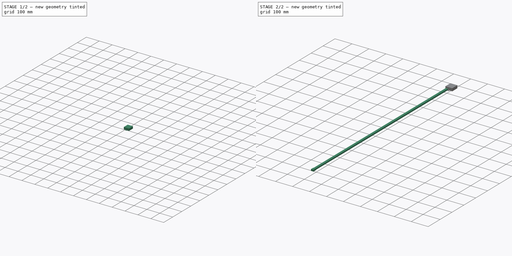
[diagram: build sequence overview — one tinted view per stage of 2, left to right]
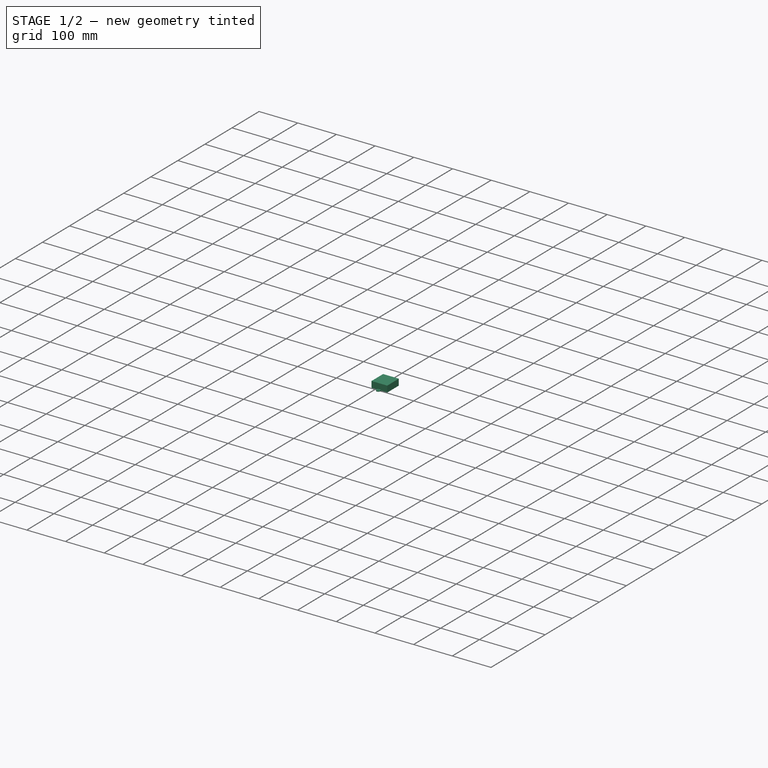
[diagram: stage 1 of 2 — iso view after this stage's code; geometry added in this stage tinted green]
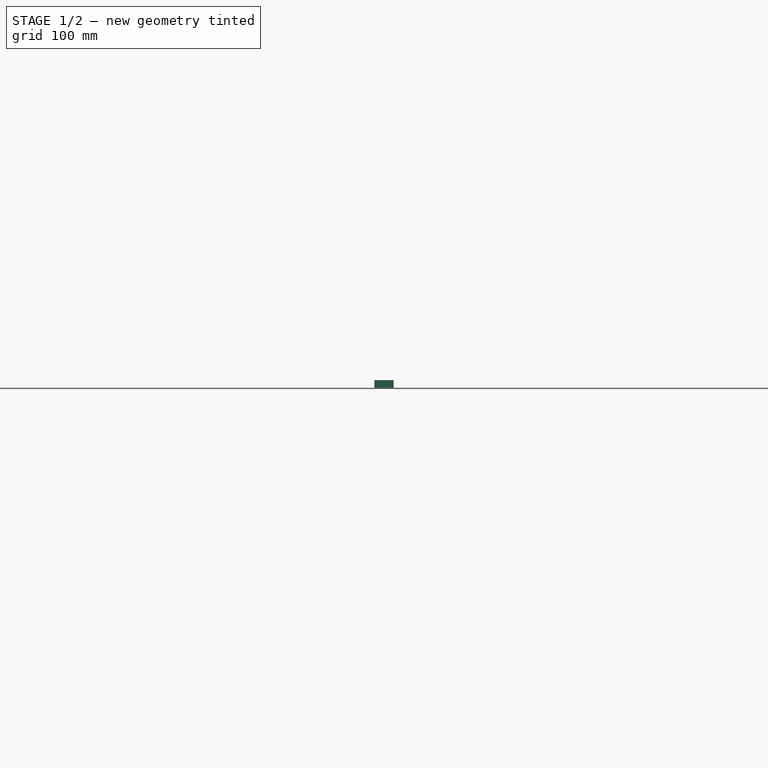
[diagram: stage 1 of 2 — front view after this stage's code; geometry added in this stage tinted green]
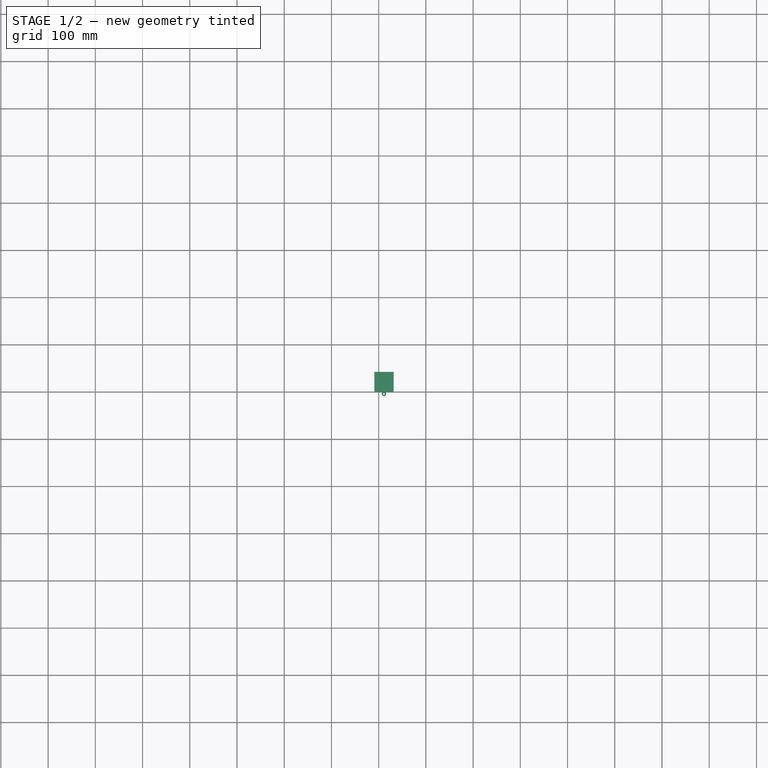
[diagram: stage 1 of 2 — top view after this stage's code; geometry added in this stage tinted green]
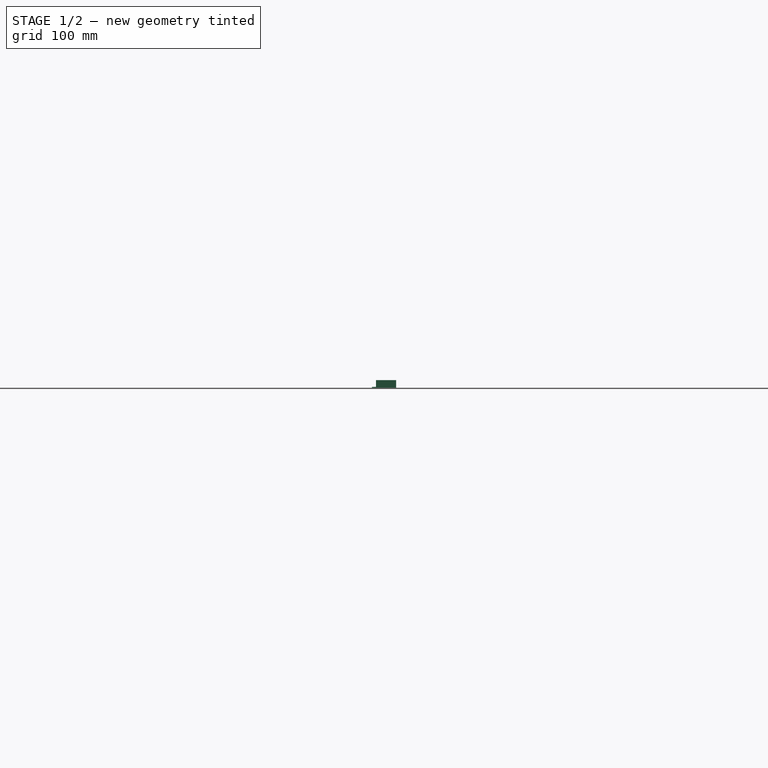
[diagram: stage 1 of 2 — right view after this stage's code; geometry added in this stage tinted green]
FCSTD DOCUMENT  (FreeCAD 1.1R38827 (Git))
Label: ULY-P91-20W
License: All rights reserved
LicenseURL: http://en.wikipedia.org/wiki/All_rights_reserved
objects: Sketcher::SketchObject×7, PartDesign::Pad×4, PartDesign::SubShapeBinder×1, PartDesign::Body×1
note: 28 computed .brp shape members not serialized (recipe doc carries the construction recipe); baked Part::Feature solids carry a one-line shape summary decoded from their .brp

FEATURE [Sketcher::SketchObject] Sketch001  label="holes"
  ArcFitTolerance = 0
  FullyConstrained = true
  MakeInternals = false
  sketch-geometry (6):
    g0: Circle [constr] CenterX=0 CenterY=-1135 CenterZ=0 NormalX=0 NormalY=0 NormalZ=1 AngleXU=0 Radius=1.8
    g1: Circle CenterX=12.5 CenterY=0 CenterZ=0 NormalX=0 NormalY=0 NormalZ=1 AngleXU=0 Radius=1.8
    g2: ArcOfCircle CenterX=0 CenterY=-1132 CenterZ=0 NormalX=0 NormalY=0 NormalZ=1 AngleXU=0 Radius=1.8 StartAngle=4.48e-14 EndAngle=3.14159
    g3: ArcOfCircle CenterX=0 CenterY=-1140 CenterZ=0 NormalX=0 NormalY=0 NormalZ=1 AngleXU=0 Radius=1.8 StartAngle=3.14159 EndAngle=6.28319
    g4: LineSegment StartX=-1.8 StartY=-1132 StartZ=0 EndX=-1.8 EndY=-1140 EndZ=0
    g5: LineSegment StartX=1.8 StartY=-1140 StartZ=0 EndX=1.8 EndY=-1132 EndZ=0
  constraints (16):
    c: DistanceX(g1) = 12.5
    c: Equal(g0,g1)
    c: Diameter(g0) = 3.6
    c: PointOnObject(g1,g-1)
    c: PointOnObject(g0,g-2)
    c: DistanceY(g0) = -1135
    c: Tangent(g2,g4) = -1.5708
    c: Tangent(g4,g3) = -1.5708
    c: Tangent(g3,g5) = -1.5708
    c: Tangent(g5,g2) = -1.5708
    c: Equal(g2,g3)
    c: PointOnObject(g2,g-2)
    c: PointOnObject(g3,g-2)
    c: DistanceY(g0,g2) = 3
    c: DistanceY(g3,g0) = 5
    c: Equal(g2,g0)
FEATURE [Sketcher::SketchObject] Sketch002  label="body"
  ArcFitTolerance = 0
  ExternalGeometry = -> [Sketch001]
  FullyConstrained = true
  MakeInternals = false
  sketch-geometry (4):
    g0: LineSegment StartX=-9 StartY=0 StartZ=0 EndX=31.6 EndY=0 EndZ=0
    g1: LineSegment StartX=31.6 StartY=0 StartZ=0 EndX=31.6 EndY=42.6 EndZ=0
    g2: LineSegment StartX=31.6 StartY=42.6 StartZ=0 EndX=-9 EndY=42.6 EndZ=0
    g3: LineSegment StartX=-9 StartY=42.6 StartZ=0 EndX=-9 EndY=0 EndZ=0
  constraints (12):
    c: Coincident(g0,g1)
    c: Coincident(g1,g2)
    c: Coincident(g2,g3)
    c: Coincident(g3,g0)
    c: Horizontal(g0)
    c: Horizontal(g2)
    c: Vertical(g1)
    c: Vertical(g3)
    c: DistanceX(g0,g0) = 40.6
    c: DistanceY(g1,g1) = 42.6
    c: PointOnObject(g0,g-1)
    c: DistanceX(g0) = 31.6
FEATURE [Sketcher::SketchObject] Sketch
  ArcFitTolerance = 0
  AttachmentOffset = pos=(11.1,0,0) rot=(0,0,1;3.14159rad)
  AttachmentSupport = -> [XY_Plane]
  FullyConstrained = true
  MakeInternals = false
  MapMode = 5
  Placement = pos=(11.1,0,0) rot=(0,0,1;3.14159rad)
  sketch-geometry (5):
    g0: ArcOfCircle CenterX=0 CenterY=4 CenterZ=0 NormalX=0 NormalY=0 NormalZ=1 AngleXU=0 Radius=4.5 StartAngle=2.68873e-11 EndAngle=3.14159
    g1: Circle CenterX=0 CenterY=4 CenterZ=0 NormalX=0 NormalY=0 NormalZ=1 AngleXU=0 Radius=1.8
    g2: LineSegment StartX=-4.5 StartY=4 StartZ=0 EndX=-4.5 EndY=0 EndZ=0
    g3: LineSegment StartX=-4.5 StartY=0 StartZ=0 EndX=4.5 EndY=0 EndZ=0
    g4: LineSegment StartX=4.5 StartY=0 StartZ=0 EndX=4.5 EndY=4 EndZ=0
  constraints (13):
    c: PointOnObject(g0,g-2)
    c: Coincident(g1,g0)
    c: Tangent(g0,g2) = -1.5708
    c: Coincident(g2,g3)
    c: PointOnObject(g3,g-1)
    c: Horizontal(g3)
    c: Coincident(g3,g4)
    c: Vertical(g4)
    c: Tangent(g4,g0) = -1.5708
    c: Vertical(g2)
    c: Diameter(g0) = 9
    c: Diameter(g1) = 3.6
    c: DistanceY(g0) = 4
FEATURE [Sketcher::SketchObject] Sketch003
  ArcFitTolerance = 0
  AttachmentSupport = -> [XY_Plane]
  FullyConstrained = true
  MakeInternals = false
  MapMode = 5
  sketch-geometry (5):
    g0: LineSegment StartX=-6.55 StartY=-1114 StartZ=0 EndX=-6.55 EndY=0 EndZ=0
    g1: LineSegment StartX=-6.55 StartY=0 StartZ=0 EndX=6.55 EndY=0 EndZ=0
    g2: LineSegment StartX=6.55 StartY=0 StartZ=0 EndX=6.55 EndY=-1114 EndZ=0
    g3: LineSegment StartX=6.55 StartY=-1114 StartZ=0 EndX=-6.55 EndY=-1114 EndZ=0
    g4: GeomPoint [constr] X=0 Y=-557 Z=0
  constraints (13):
    c: Coincident(g0,g1)
    c: Coincident(g1,g2)
    c: Coincident(g2,g3)
    c: Coincident(g3,g0)
    c: Horizontal(g1)
    c: Horizontal(g3)
    c: Vertical(g0)
    c: Vertical(g2)
    c: Symmetric(g1,g0,g4)
    c: PointOnObject(g4,g-2)
    c: PointOnObject(g1,g-1)
    c: DistanceX(g1,g1) = 13.1
    c: DistanceY(g2,g2) = 1114
FEATURE [PartDesign::SubShapeBinder] Binder
  BindCopyOnChange = 0
  BindMode = 0
  ClaimChildren = true
  Context = -> Body [Binder.]
  Fuse = false
  MakeFace = true
  OffsetFill = false
  OffsetIntersection = false
  OffsetJoinType = 0
  OffsetOpenResult = false
  PartialLoad = false
  Relative = false
  Support = -> [Sketch002]
  _Version = 2
FEATURE [PartDesign::Pad] Pad002
  Direction = (0,0,1)
  Length = 16.3
  Length2 = 10
  Profile = -> Binder
  Suppressed = false
  Type = 0
FEATURE [PartDesign::Pad] Pad
  BaseFeature = -> Pad002
  Direction = (0,0,1)
  Length = 2
  Length2 = 10
  Profile = -> Sketch
  ReferenceAxis = -> Sketch [N_Axis]
  Suppressed = false
  Type = 0
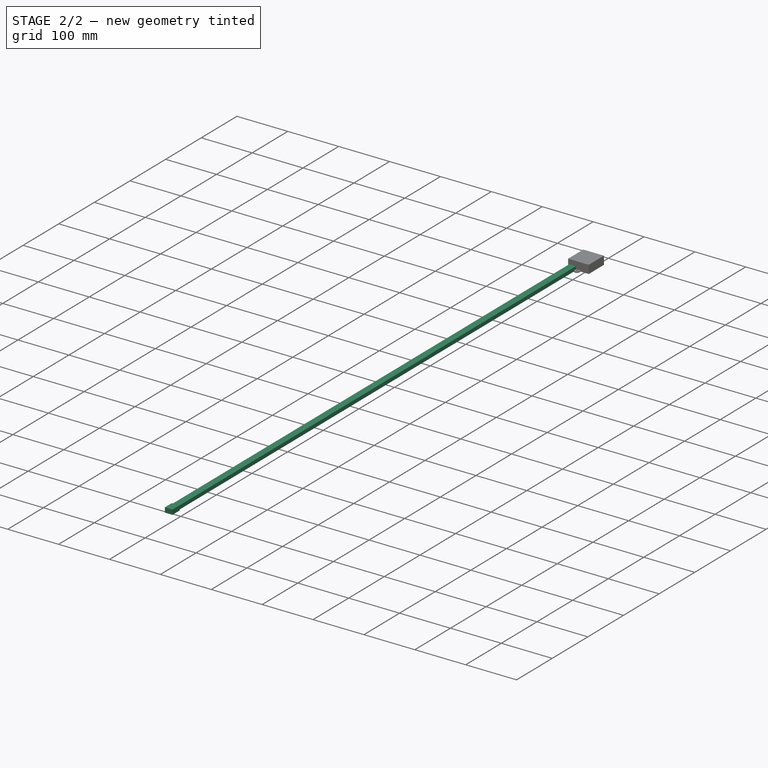
[diagram: stage 2 of 2 — iso view after this stage's code; geometry added in this stage tinted green]
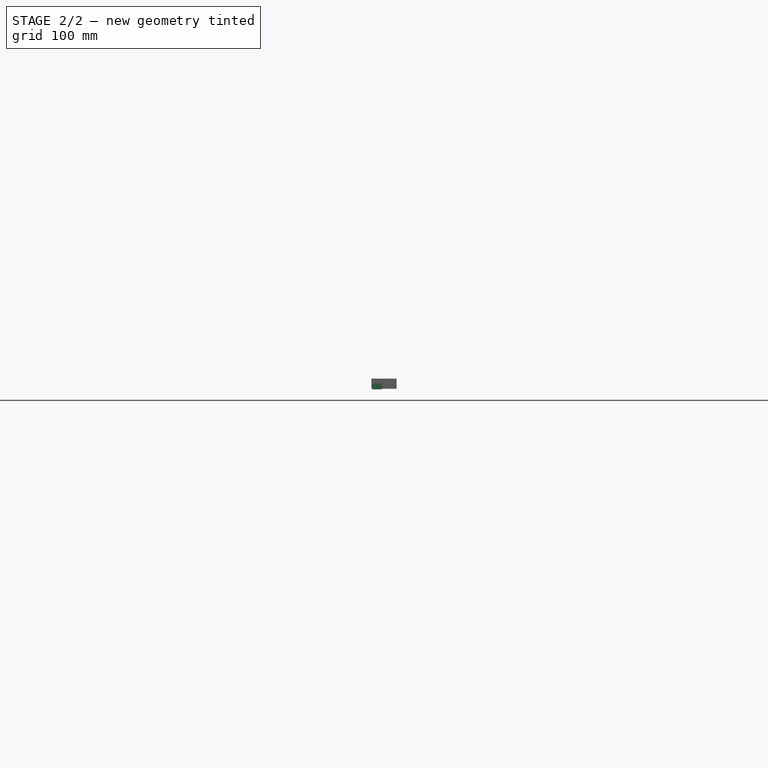
[diagram: stage 2 of 2 — front view after this stage's code; geometry added in this stage tinted green]
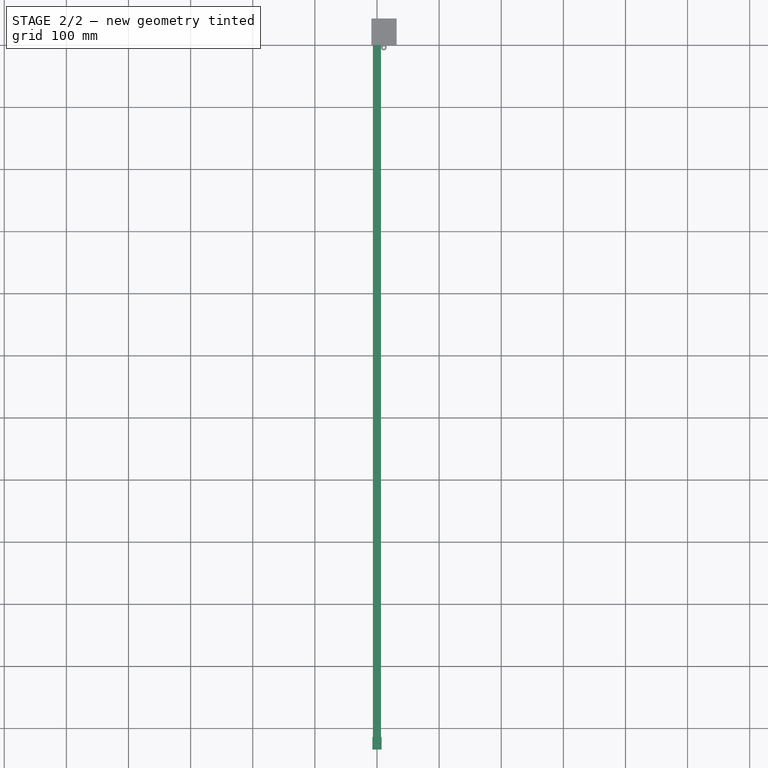
[diagram: stage 2 of 2 — top view after this stage's code; geometry added in this stage tinted green]
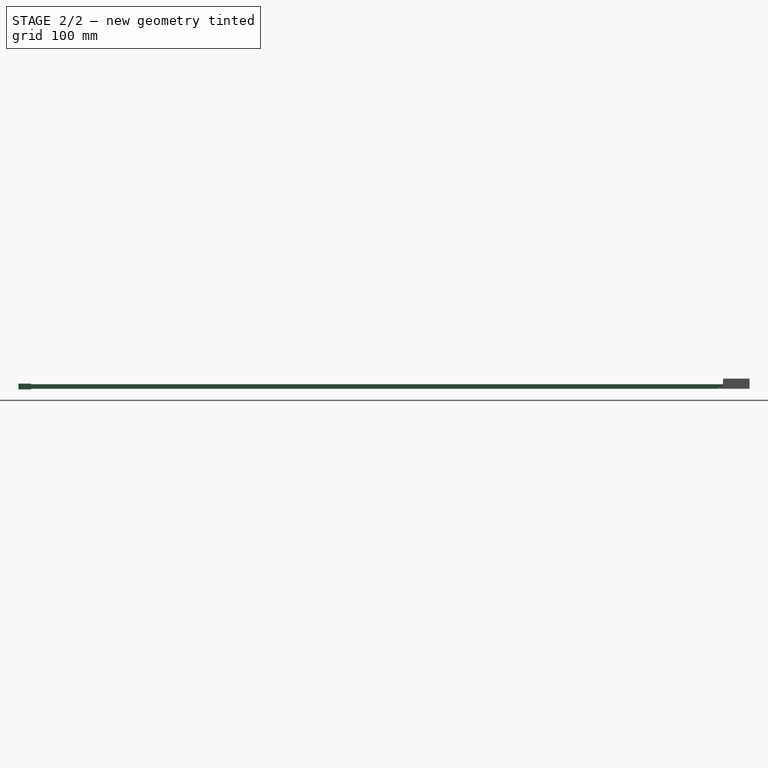
[diagram: stage 2 of 2 — right view after this stage's code; geometry added in this stage tinted green]
FEATURE [PartDesign::Pad] Pad001
  BaseFeature = -> Pad
  Direction = (0,0,1)
  Length = 7.3
  Length2 = 10
  Profile = -> Sketch003
  ReferenceAxis = -> Sketch003 [N_Axis]
  Suppressed = false
  Type = 0
FEATURE [Sketcher::SketchObject] Sketch004
  ArcFitTolerance = 0
  AttachmentSupport = -> [XY_Plane]
  ExternalGeometry = -> [Sketch003]
  FullyConstrained = true
  MakeInternals = false
  MapMode = 5
  sketch-geometry (5):
    g0: LineSegment StartX=-7.5 StartY=-1134 StartZ=0 EndX=-7.5 EndY=-1114 EndZ=0
    g1: LineSegment StartX=-7.5 StartY=-1114 StartZ=0 EndX=7.5 EndY=-1114 EndZ=0
    g2: LineSegment StartX=7.5 StartY=-1114 StartZ=0 EndX=7.5 EndY=-1134 EndZ=0
    g3: LineSegment StartX=7.5 StartY=-1134 StartZ=0 EndX=-7.5 EndY=-1134 EndZ=0
    g4: GeomPoint [constr] X=0 Y=-1124 Z=0
  constraints (13):
    c: Coincident(g0,g1)
    c: Coincident(g1,g2)
    c: Coincident(g2,g3)
    c: Coincident(g3,g0)
    c: Horizontal(g1)
    c: Horizontal(g3)
    c: Vertical(g0)
    c: Vertical(g2)
    c: Symmetric(g1,g0,g4)
    c: PointOnObject(g4,g-2)
    c: PointOnObject(g-3,g1)
    c: DistanceX(g1,g1) = 15
    c: DistanceY(g2,g2) = 20
FEATURE [PartDesign::Pad] Pad003
  BaseFeature = -> Pad001
  Direction = (0,0,1)
  Length = 8.3
  Length2 = 1
  Profile = -> Sketch004
  ReferenceAxis = -> Sketch004 [N_Axis]
  Suppressed = false
  Type = 4
FEATURE [Sketcher::SketchObject] Sketch005  label="driver_slice_sketch"
  ArcFitTolerance = 0
  AttachmentSupport = -> [XZ_Plane]
  FullyConstrained = true
  MakeInternals = false
  MapMode = 5
  Placement = pos=(0,0,0) rot=(1,0,0;1.5708rad)
  sketch-geometry (4):
    g0: LineSegment StartX=-9.7 StartY=-1 StartZ=0 EndX=30.9 EndY=-1 EndZ=0
    g1: LineSegment StartX=30.9 StartY=-1 StartZ=0 EndX=30.9 EndY=15 EndZ=0
    g2: LineSegment StartX=30.9 StartY=15 StartZ=0 EndX=-9.7 EndY=15 EndZ=0
    g3: LineSegment StartX=-9.7 StartY=15 StartZ=0 EndX=-9.7 EndY=-1 EndZ=0
  constraints (12):
    c: Coincident(g0,g1)
    c: Coincident(g1,g2)
    c: Coincident(g2,g3)
    c: Coincident(g3,g0)
    c: Horizontal(g0)
    c: Horizontal(g2)
    c: Vertical(g1)
    c: Vertical(g3)
    c: DistanceY(g0) = -1
    c: DistanceY(g1) = 15
    c: DistanceX(g0) = 30.9
    c: DistanceX(g2,g2) = 40.6
FEATURE [Sketcher::SketchObject] Sketch006  label="led_slice_sketch"
  ArcFitTolerance = 0
  AttachmentSupport = -> [XZ_Plane]
  FullyConstrained = true
  MakeInternals = false
  MapMode = 5
  Placement = pos=(0,0,0) rot=(1,0,0;1.5708rad)
  sketch-geometry (5):
    g0: LineSegment StartX=-6.55 StartY=7.3 StartZ=0 EndX=-6.55 EndY=0 EndZ=0
    g1: LineSegment StartX=-6.55 StartY=0 StartZ=0 EndX=6.55 EndY=0 EndZ=0
    g2: LineSegment StartX=6.55 StartY=0 StartZ=0 EndX=6.55 EndY=7.3 EndZ=0
    g3: LineSegment StartX=6.55 StartY=7.3 StartZ=0 EndX=-6.55 EndY=7.3 EndZ=0
    g4: GeomPoint [constr] X=0 Y=3.65 Z=0
  constraints (13):
    c: Coincident(g0,g1)
    c: Coincident(g1,g2)
    c: Coincident(g2,g3)
    c: Coincident(g3,g0)
    c: Horizontal(g1)
    c: Horizontal(g3)
    c: Vertical(g0)
    c: Vertical(g2)
    c: Symmetric(g1,g0,g4)
    c: PointOnObject(g4,g-2)
    c: PointOnObject(g1,g-1)
    c: DistanceX(g1,g1) = 13.1
    c: DistanceY(g2,g2) = 7.3
FEATURE [PartDesign::Body] Body
  AllowCompound = false
  Group = -> [Sketch,Pad002,Pad,Sketch003,Pad001,Binder,Sketch004,Pad003,Sketch005,Sketch006]
  Origin = -> Origin
  Tip = -> Pad003
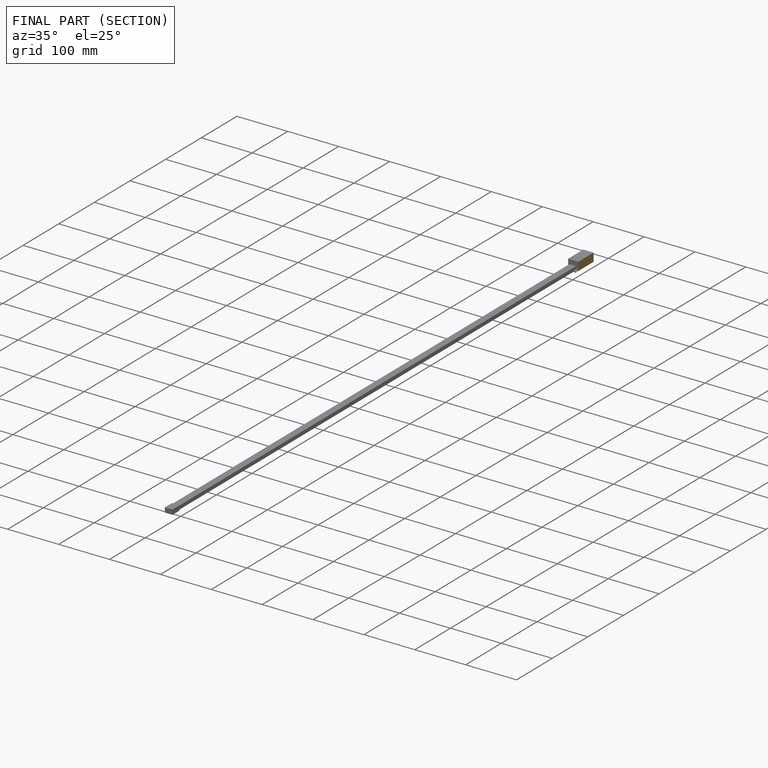
[diagram: finished part — half-section view (interior)]
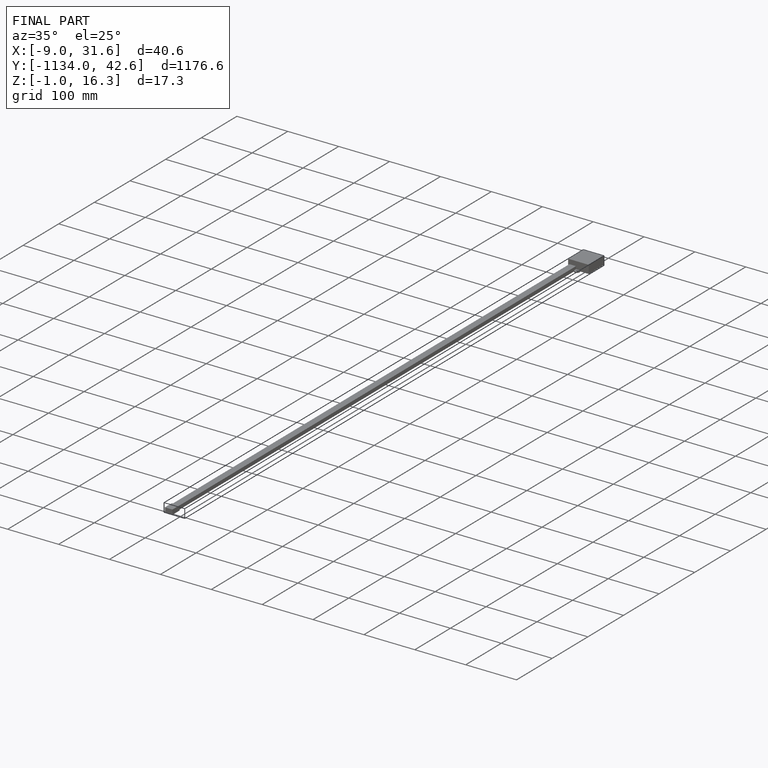
[diagram: finished part — iso view with bounding-box wireframe]
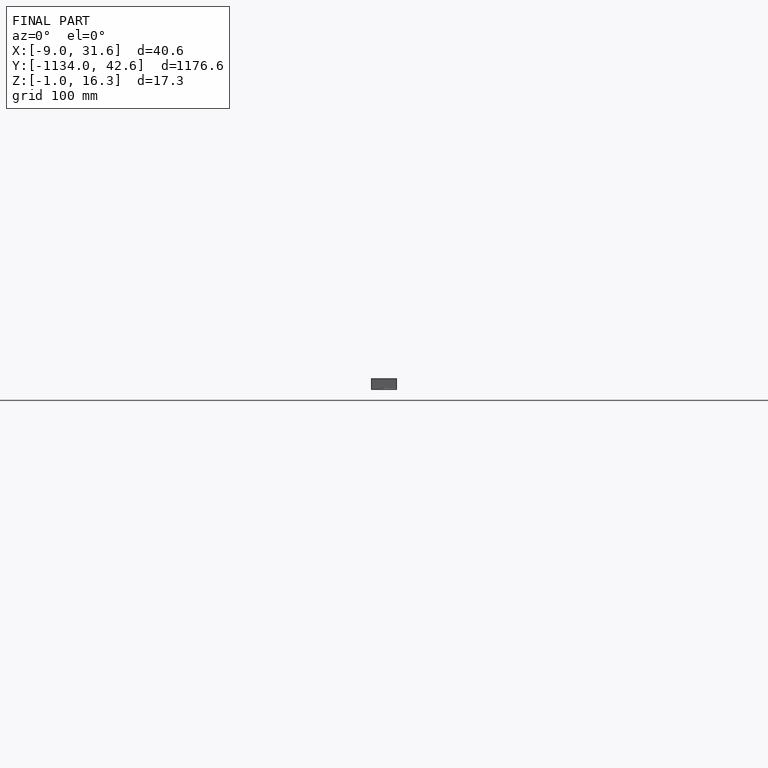
[diagram: finished part — front view with bounding-box wireframe]
